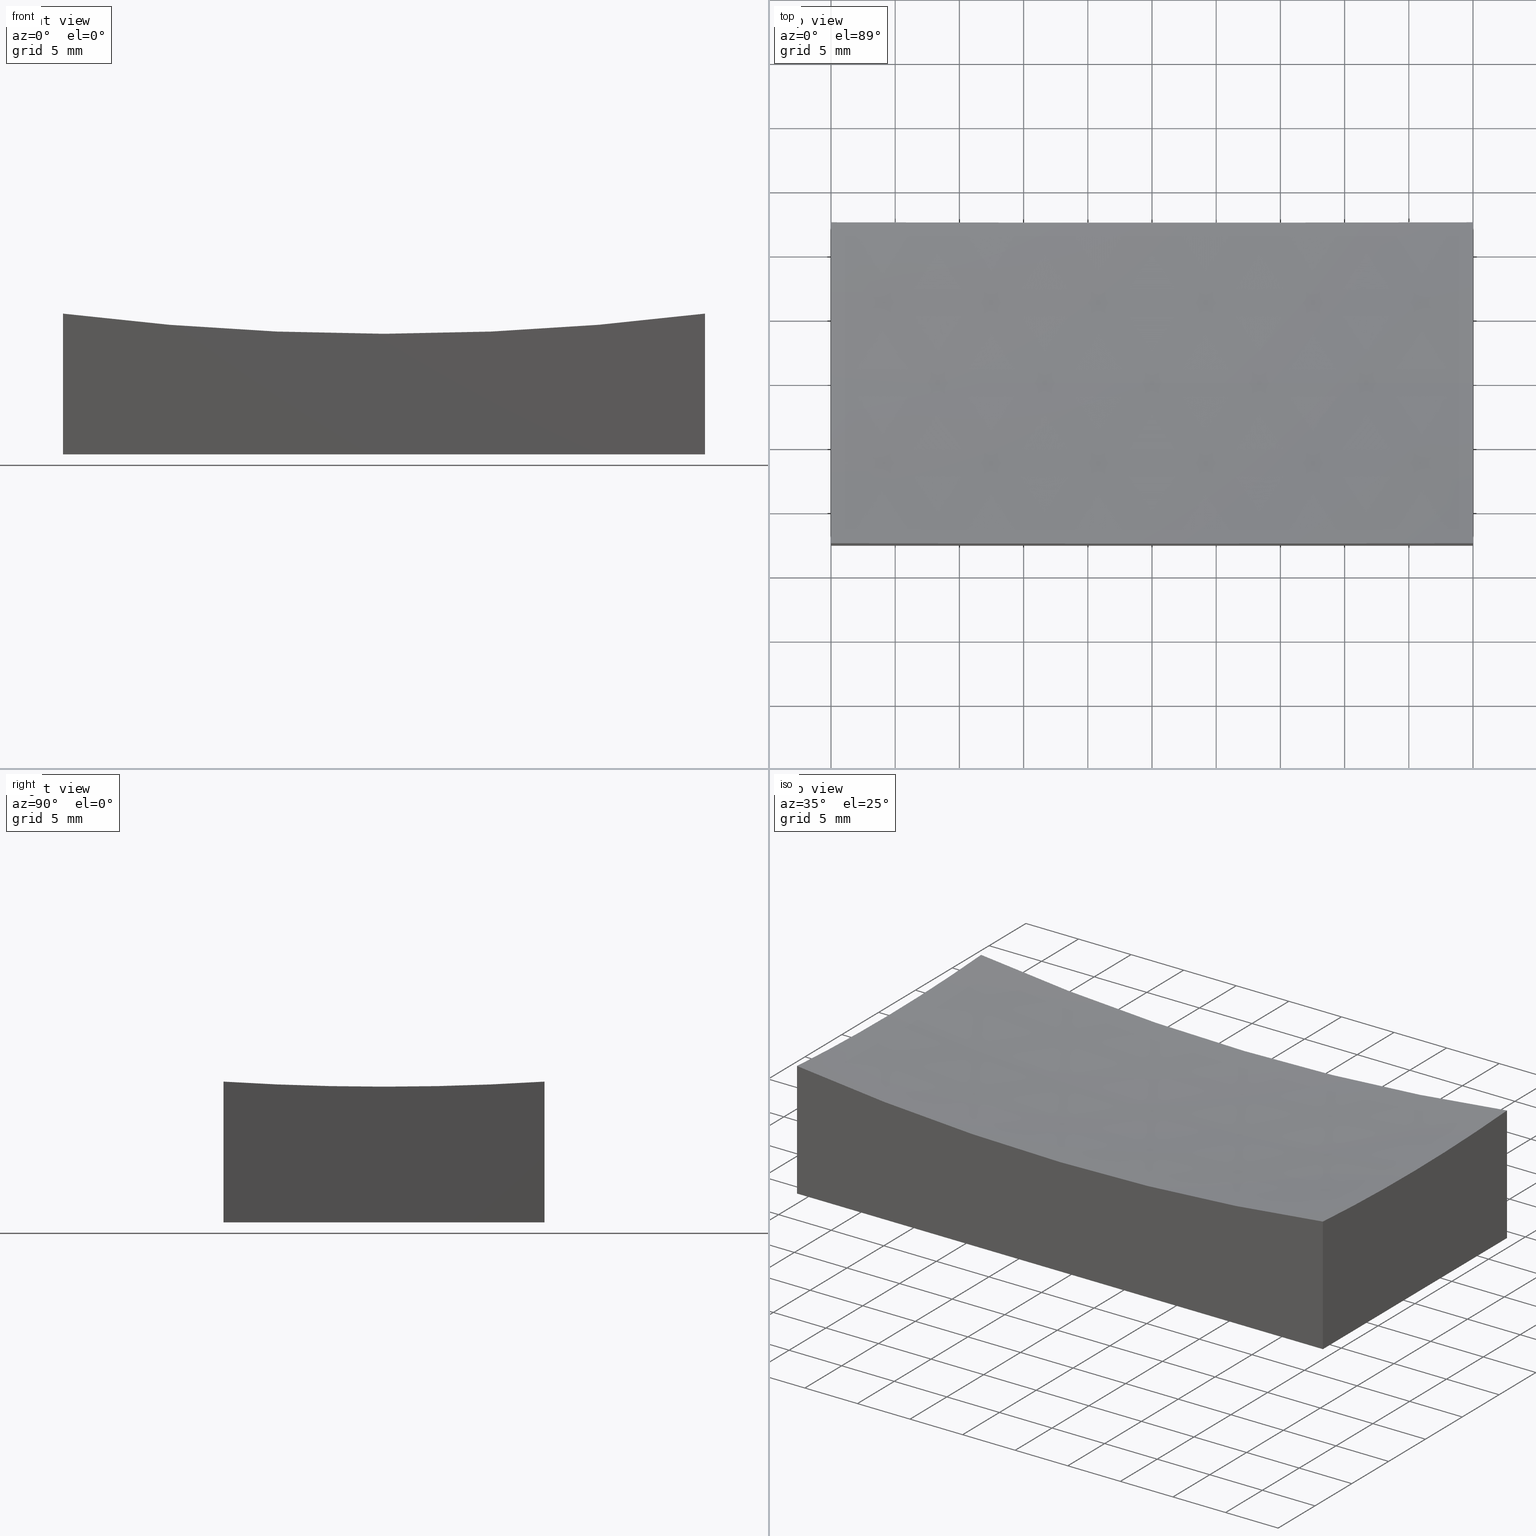
[diagram: canonical four-view strip — front | top / right | iso, engineering-drawing reading convention]
A machine part, canonical four-view strip (front | top / right | iso — engineering-drawing reading convention). The complete STEP part file that produces these views, byte-faithful:
ISO-10303-21;
HEADER;
FILE_DESCRIPTION (( 'STEP AP214' ),
    '1' );
FILE_NAME ('GM13-50x25-100.STEP',
    '2024-08-13T03:14:19',
    ( 'Windows User' ),
    ( 'P R C' ),
    'SwSTEP 2.0',
    'SolidWorks 2022',
    '' );
FILE_SCHEMA (( 'AUTOMOTIVE_DESIGN' ));
ENDSEC;

DATA;
#1 = PLANE ( 'NONE',  #218 ) ;
#2 = SPHERICAL_SURFACE ( 'NONE', #222, 200.0000000000000000 ) ;
#3 =( NAMED_UNIT ( * ) SI_UNIT ( $, .STERADIAN. ) SOLID_ANGLE_UNIT ( ) );
#4 = CIRCLE ( 'NONE', #210, 198.4313483298443259 ) ;
#5 = CARTESIAN_POINT ( 'NONE',  ( 0.000000000000000000, 0.000000000000000000, 0.000000000000000000 ) ) ;
#6 = PRESENTATION_LAYER_ASSIGNMENT (  '', '', ( #213 ) ) ;
#7 =( NAMED_UNIT ( * ) SI_UNIT ( $, .STERADIAN. ) SOLID_ANGLE_UNIT ( ) );
#8 = VERTEX_POINT ( 'NONE', #206 ) ;
#9 = ORIENTED_EDGE ( 'NONE', *, *, #72, .T. ) ;
#10 =( NAMED_UNIT ( * ) SI_UNIT ( $, .STERADIAN. ) SOLID_ANGLE_UNIT ( ) );
#11 = ORIENTED_EDGE ( 'NONE', *, *, #203, .F. ) ;
#12 =( NAMED_UNIT ( * ) PLANE_ANGLE_UNIT ( ) SI_UNIT ( $, .RADIAN. ) );
#13 = MECHANICAL_DESIGN_GEOMETRIC_PRESENTATION_REPRESENTATION (  '', ( #213 ), #54 ) ;
#14 = MANIFOLD_SOLID_BREP ( '�г�-��ת1', #151 ) ;
#15 = CARTESIAN_POINT ( 'NONE',  ( -25.00000000000000000, -3.061616997868383043E-15, 10.56865167015569362 ) ) ;
#16 = AXIS2_PLACEMENT_3D ( 'NONE', #111, #157, #32 ) ;
#17 = DIRECTION ( 'NONE',  ( 0.000000000000000000, -1.000000000000000000, -0.000000000000000000 ) ) ;
#18 = PLANE ( 'NONE',  #148 ) ;
#19 = DIRECTION ( 'NONE',  ( -1.000000000000000000, -0.000000000000000000, -0.000000000000000000 ) ) ;
#20 = ADVANCED_FACE ( 'NONE', ( #143 ), #139, .F. ) ;
#21 = UNCERTAINTY_MEASURE_WITH_UNIT (LENGTH_MEASURE( 1.000000000000000082E-05 ), #37, 'distance_accuracy_value', 'NONE');
#22 = CARTESIAN_POINT ( 'NONE',  ( -24.99999999999999645, -12.50000000000000000, 0.000000000000000000 ) ) ;
#23 = AXIS2_PLACEMENT_3D ( 'NONE', #96, #154, #195 ) ;
#24 = FACE_OUTER_BOUND ( 'NONE', #161, .T. ) ;
#25 = SHAPE_DEFINITION_REPRESENTATION ( #74, #48 ) ;
#26 = CIRCLE ( 'NONE', #180, 200.0000000000000000 ) ;
#27 = ORIENTED_EDGE ( 'NONE', *, *, #36, .F. ) ;
#28 = ADVANCED_FACE ( 'NONE', ( #103 ), #99, .F. ) ;
#29 = ORIENTED_EDGE ( 'NONE', *, *, #160, .T. ) ;
#30 = ORIENTED_EDGE ( 'NONE', *, *, #192, .T. ) ;
#31 = DIRECTION ( 'NONE',  ( 1.000000000000000000, 1.224646799147353207E-16, 0.000000000000000000 ) ) ;
#32 = DIRECTION ( 'NONE',  ( 5.329070518200749816E-15, 0.000000000000000000, 1.000000000000000000 ) ) ;
#33 = LINE ( 'NONE', #209, #80 ) ;
#34 = LINE ( 'NONE', #116, #108 ) ;
#35 = DIRECTION ( 'NONE',  ( -1.000000000000000000, -1.387778780781445676E-16, 0.000000000000000000 ) ) ;
#36 = EDGE_CURVE ( 'NONE', #49, #128, #237, .T. ) ;
#37 =( LENGTH_UNIT ( ) NAMED_UNIT ( * ) SI_UNIT ( .MILLI., .METRE. ) );
#38 = ORIENTED_EDGE ( 'NONE', *, *, #155, .T. ) ;
#39 = SURFACE_STYLE_USAGE ( .BOTH. , #58 ) ;
#40 = CARTESIAN_POINT ( 'NONE',  ( 25.00000000000000355, 12.50000000000000000, 10.96275602806423599 ) ) ;
#41 = ORIENTED_EDGE ( 'NONE', *, *, #110, .T. ) ;
#42 = PRESENTATION_LAYER_ASSIGNMENT (  '', '', ( #131 ) ) ;
#43 = ADVANCED_FACE ( 'NONE', ( #24 ), #57, .F. ) ;
#44 = ORIENTED_EDGE ( 'NONE', *, *, #136, .F. ) ;
#45 = AXIS2_PLACEMENT_3D ( 'NONE', #94, #117, #135 ) ;
#46 = ORIENTED_EDGE ( 'NONE', *, *, #129, .F. ) ;
#47 = ORIENTED_EDGE ( 'NONE', *, *, #238, .T. ) ;
#48 = ADVANCED_BREP_SHAPE_REPRESENTATION ( 'GM13-50x25-100', ( #14, #248 ), #61 ) ;
#49 = VERTEX_POINT ( 'NONE', #120 ) ;
#50 = DIRECTION ( 'NONE',  ( -0.000000000000000000, -0.000000000000000000, -1.000000000000000000 ) ) ;
#51 = DIRECTION ( 'NONE',  ( -2.797499069501050082E-16, -1.000000000000000000, 0.000000000000000000 ) ) ;
#52 = DIRECTION ( 'NONE',  ( 1.387778780781445676E-16, -1.000000000000000000, 0.000000000000000000 ) ) ;
#53 = CARTESIAN_POINT ( 'NONE',  ( 25.00000000000000000, -6.938893903907228378E-15, 209.0000000000000284 ) ) ;
#54 =( GEOMETRIC_REPRESENTATION_CONTEXT ( 3 ) GLOBAL_UNCERTAINTY_ASSIGNED_CONTEXT ( ( #21 ) ) GLOBAL_UNIT_ASSIGNED_CONTEXT ( ( #37, #144, #3 ) ) REPRESENTATION_CONTEXT ( 'NONE', 'WORKASPACE' ) );
#55 = CARTESIAN_POINT ( 'NONE',  ( 25.00000000000000355, 12.50000000000000000, 15.00000000000000000 ) ) ;
#56 = VERTEX_POINT ( 'NONE', #198 ) ;
#57 = PLANE ( 'NONE',  #79 ) ;
#58 = SURFACE_SIDE_STYLE ('',( #223 ) ) ;
#59 = EDGE_CURVE ( 'NONE', #235, #128, #101, .T. ) ;
#60 = DIRECTION ( 'NONE',  ( 0.000000000000000000, -1.000000000000000000, 0.000000000000000000 ) ) ;
#61 =( GEOMETRIC_REPRESENTATION_CONTEXT ( 3 ) GLOBAL_UNCERTAINTY_ASSIGNED_CONTEXT ( ( #216 ) ) GLOBAL_UNIT_ASSIGNED_CONTEXT ( ( #68, #12, #10 ) ) REPRESENTATION_CONTEXT ( 'NONE', 'WORKASPACE' ) );
#62 = EDGE_CURVE ( 'NONE', #8, #69, #159, .T. ) ;
#63 =( NAMED_UNIT ( * ) PLANE_ANGLE_UNIT ( ) SI_UNIT ( $, .RADIAN. ) );
#64 = EDGE_LOOP ( 'NONE', ( #245, #187, #46, #27 ) ) ;
#65 = ORIENTED_EDGE ( 'NONE', *, *, #36, .T. ) ;
#66 = AXIS2_PLACEMENT_3D ( 'NONE', #191, #230, #196 ) ;
#67 = ORIENTED_EDGE ( 'NONE', *, *, #72, .F. ) ;
#68 =( LENGTH_UNIT ( ) NAMED_UNIT ( * ) SI_UNIT ( .MILLI., .METRE. ) );
#69 = VERTEX_POINT ( 'NONE', #40 ) ;
#70 = DIRECTION ( 'NONE',  ( -0.000000000000000000, 1.000000000000000000, -0.000000000000000000 ) ) ;
#71 = DIRECTION ( 'NONE',  ( 1.224646799147353207E-16, -1.000000000000000000, -2.389495266532727716E-35 ) ) ;
#72 = EDGE_CURVE ( 'NONE', #107, #126, #26, .T. ) ;
#73 = LINE ( 'NONE', #227, #236 ) ;
#74 = PRODUCT_DEFINITION_SHAPE ( 'NONE', 'NONE',  #82 ) ;
#75 = DIRECTION ( 'NONE',  ( -0.000000000000000000, -0.000000000000000000, -1.000000000000000000 ) ) ;
#76 = CARTESIAN_POINT ( 'NONE',  ( -25.00000000000000000, 12.50000000000000000, 15.00000000000000000 ) ) ;
#77 = FACE_OUTER_BOUND ( 'NONE', #85, .T. ) ;
#78 = UNCERTAINTY_MEASURE_WITH_UNIT (LENGTH_MEASURE( 1.000000000000000082E-05 ), #182, 'distance_accuracy_value', 'NONE');
#79 = AXIS2_PLACEMENT_3D ( 'NONE', #83, #219, #142 ) ;
#80 = VECTOR ( 'NONE', #252, 1000.000000000000000 ) ;
#81 = CARTESIAN_POINT ( 'NONE',  ( 24.99999999999999645, -12.50000000000000000, 15.00000000000000000 ) ) ;
#82 = PRODUCT_DEFINITION ( 'δ֪', '', #158, #233 ) ;
#83 = CARTESIAN_POINT ( 'NONE',  ( -24.99999999999999645, -12.50000000000000000, 15.00000000000000000 ) ) ;
#84 = DIRECTION ( 'NONE',  ( 1.000000000000000000, 0.000000000000000000, 0.000000000000000000 ) ) ;
#85 = EDGE_LOOP ( 'NONE', ( #201, #9, #186, #221, #47 ) ) ;
#86 = VERTEX_POINT ( 'NONE', #133 ) ;
#87 = CIRCLE ( 'NONE', #121, 199.6089927833914146 ) ;
#88 = ORIENTED_EDGE ( 'NONE', *, *, #59, .T. ) ;
#89 = ORIENTED_EDGE ( 'NONE', *, *, #199, .F. ) ;
#90 = SURFACE_STYLE_USAGE ( .BOTH. , #190 ) ;
#91 = MECHANICAL_DESIGN_GEOMETRIC_PRESENTATION_REPRESENTATION (  '', ( #131 ), #170 ) ;
#92 = VECTOR ( 'NONE', #179, 1000.000000000000000 ) ;
#93 = CIRCLE ( 'NONE', #45, 200.0000000000000000 ) ;
#94 = CARTESIAN_POINT ( 'NONE',  ( 0.000000000000000000, 0.000000000000000000, 209.0000000000000284 ) ) ;
#95 = DIRECTION ( 'NONE',  ( -1.398749534750525041E-16, 1.000000000000000000, 0.000000000000000000 ) ) ;
#96 = CARTESIAN_POINT ( 'NONE',  ( -25.00000000000000000, -3.469446951953614189E-15, 209.0000000000000284 ) ) ;
#97 = DIRECTION ( 'NONE',  ( -2.775557561562891351E-16, -1.000000000000000000, 0.000000000000000000 ) ) ;
#98 = DIRECTION ( 'NONE',  ( 2.775557561562891351E-16, 1.000000000000000000, -0.000000000000000000 ) ) ;
#99 = PLANE ( 'NONE',  #124 ) ;
#100 = ADVANCED_FACE ( 'NONE', ( #172 ), #194, .F. ) ;
#101 = LINE ( 'NONE', #81, #92 ) ;
#102 = VECTOR ( 'NONE', #75, 1000.000000000000000 ) ;
#103 = FACE_OUTER_BOUND ( 'NONE', #64, .T. ) ;
#104 = CARTESIAN_POINT ( 'NONE',  ( 0.000000000000000000, 0.000000000000000000, 0.000000000000000000 ) ) ;
#105 = CIRCLE ( 'NONE', #141, 198.4313483298443259 ) ;
#106 = ORIENTED_EDGE ( 'NONE', *, *, #155, .F. ) ;
#107 = VERTEX_POINT ( 'NONE', #15 ) ;
#108 = VECTOR ( 'NONE', #19, 1000.000000000000000 ) ;
#109 = ORIENTED_EDGE ( 'NONE', *, *, #59, .F. ) ;
#110 = EDGE_CURVE ( 'NONE', #8, #126, #93, .T. ) ;
#111 = CARTESIAN_POINT ( 'NONE',  ( 0.000000000000000000, -12.49999999999999645, 209.0000000000000284 ) ) ;
#112 = VECTOR ( 'NONE', #50, 1000.000000000000000 ) ;
#113 = CARTESIAN_POINT ( 'NONE',  ( -25.00000000000000000, -3.469446951953614189E-15, 209.0000000000000284 ) ) ;
#114 = CARTESIAN_POINT ( 'NONE',  ( 0.000000000000000000, 0.000000000000000000, 209.0000000000000284 ) ) ;
#115 = COLOUR_RGB ( '',1.000000000000000000, 1.000000000000000000, 1.000000000000000000 ) ;
#116 = CARTESIAN_POINT ( 'NONE',  ( -25.00000000000000000, 12.50000000000000000, 0.000000000000000000 ) ) ;
#117 = DIRECTION ( 'NONE',  ( 0.000000000000000000, 1.000000000000000000, -0.000000000000000000 ) ) ;
#118 = EDGE_CURVE ( 'NONE', #123, #49, #229, .T. ) ;
#119 = PRODUCT ( 'GM13-50x25-100', 'GM13-50x25-100', '', ( #220 ) ) ;
#120 = CARTESIAN_POINT ( 'NONE',  ( -24.99999999999999645, -12.50000000000000000, 0.000000000000000000 ) ) ;
#121 = AXIS2_PLACEMENT_3D ( 'NONE', #188, #70, #205 ) ;
#122 = CARTESIAN_POINT ( 'NONE',  ( 0.000000000000000000, 0.000000000000000000, 209.0000000000000284 ) ) ;
#123 = VERTEX_POINT ( 'NONE', #174 ) ;
#124 = AXIS2_PLACEMENT_3D ( 'NONE', #5, #178, #162 ) ;
#125 = DIRECTION ( 'NONE',  ( 0.000000000000000000, 0.000000000000000000, 1.000000000000000000 ) ) ;
#126 = VERTEX_POINT ( 'NONE', #251 ) ;
#127 = CIRCLE ( 'NONE', #16, 199.6089927833914430 ) ;
#128 = VERTEX_POINT ( 'NONE', #153 ) ;
#129 = EDGE_CURVE ( 'NONE', #128, #56, #73, .T. ) ;
#130 = EDGE_LOOP ( 'NONE', ( #67, #30, #38, #247, #41 ) ) ;
#131 = STYLED_ITEM ( 'NONE', ( #249 ), #48 ) ;
#132 = ORIENTED_EDGE ( 'NONE', *, *, #238, .F. ) ;
#133 = CARTESIAN_POINT ( 'NONE',  ( -24.99999999999998934, -12.49999999999999645, 10.96275602806423599 ) ) ;
#134 = DIRECTION ( 'NONE',  ( -1.000000000000000000, 2.775557561562891351E-16, 0.000000000000000000 ) ) ;
#135 = DIRECTION ( 'NONE',  ( 0.000000000000000000, 0.000000000000000000, 1.000000000000000000 ) ) ;
#136 = EDGE_CURVE ( 'NONE', #86, #49, #33, .T. ) ;
#137 = DIRECTION ( 'NONE',  ( -1.387778780781445676E-16, 1.000000000000000000, 0.000000000000000000 ) ) ;
#138 = CARTESIAN_POINT ( 'NONE',  ( -25.00000000000000000, 12.50000000000000000, 15.00000000000000000 ) ) ;
#139 = PLANE ( 'NONE',  #232 ) ;
#140 = ADVANCED_FACE ( 'NONE', ( #77 ), #2, .F. ) ;
#141 = AXIS2_PLACEMENT_3D ( 'NONE', #113, #35, #95 ) ;
#142 = DIRECTION ( 'NONE',  ( 0.000000000000000000, -0.000000000000000000, 1.000000000000000000 ) ) ;
#143 = FACE_OUTER_BOUND ( 'NONE', #184, .T. ) ;
#144 =( NAMED_UNIT ( * ) PLANE_ANGLE_UNIT ( ) SI_UNIT ( $, .RADIAN. ) );
#145 = APPLICATION_CONTEXT ( 'automotive_design' ) ;
#146 = ORIENTED_EDGE ( 'NONE', *, *, #118, .T. ) ;
#147 = ORIENTED_EDGE ( 'NONE', *, *, #160, .F. ) ;
#148 = AXIS2_PLACEMENT_3D ( 'NONE', #55, #134, #97 ) ;
#149 = EDGE_LOOP ( 'NONE', ( #11, #169, #146, #44, #240 ) ) ;
#150 = FILL_AREA_STYLE ('',( #246 ) ) ;
#151 = CLOSED_SHELL ( 'NONE', ( #140, #208, #43, #185, #20, #28, #100 ) ) ;
#152 = ORIENTED_EDGE ( 'NONE', *, *, #62, .F. ) ;
#153 = CARTESIAN_POINT ( 'NONE',  ( 24.99999999999999645, -12.50000000000000000, 0.000000000000000000 ) ) ;
#154 = DIRECTION ( 'NONE',  ( -1.000000000000000000, -1.387778780781445676E-16, 0.000000000000000000 ) ) ;
#155 = EDGE_CURVE ( 'NONE', #86, #235, #127, .T. ) ;
#156 = DIRECTION ( 'NONE',  ( 1.000000000000000000, 1.387778780781445676E-16, -0.000000000000000000 ) ) ;
#157 = DIRECTION ( 'NONE',  ( -0.000000000000000000, -1.000000000000000000, -0.000000000000000000 ) ) ;
#158 = PRODUCT_DEFINITION_FORMATION_WITH_SPECIFIED_SOURCE ( '�κ�', '', #119, .NOT_KNOWN. ) ;
#159 = CIRCLE ( 'NONE', #163, 198.4313483298443259 ) ;
#160 = EDGE_CURVE ( 'NONE', #69, #56, #228, .T. ) ;
#161 = EDGE_LOOP ( 'NONE', ( #106, #166, #65, #109 ) ) ;
#162 = DIRECTION ( 'NONE',  ( 1.000000000000000000, 0.000000000000000000, 0.000000000000000000 ) ) ;
#163 = AXIS2_PLACEMENT_3D ( 'NONE', #200, #164, #239 ) ;
#164 = DIRECTION ( 'NONE',  ( 1.000000000000000000, -2.775557561562891351E-16, -0.000000000000000000 ) ) ;
#165 = ORIENTED_EDGE ( 'NONE', *, *, #226, .T. ) ;
#166 = ORIENTED_EDGE ( 'NONE', *, *, #136, .T. ) ;
#167 = EDGE_CURVE ( 'NONE', #235, #8, #4, .T. ) ;
#168 = EDGE_LOOP ( 'NONE', ( #242, #88, #225, #147, #152 ) ) ;
#169 = ORIENTED_EDGE ( 'NONE', *, *, #199, .T. ) ;
#170 =( GEOMETRIC_REPRESENTATION_CONTEXT ( 3 ) GLOBAL_UNCERTAINTY_ASSIGNED_CONTEXT ( ( #78 ) ) GLOBAL_UNIT_ASSIGNED_CONTEXT ( ( #182, #63, #7 ) ) REPRESENTATION_CONTEXT ( 'NONE', 'WORKASPACE' ) );
#171 = SURFACE_STYLE_FILL_AREA ( #150 ) ;
#172 = FACE_OUTER_BOUND ( 'NONE', #130, .T. ) ;
#173 = PRODUCT_RELATED_PRODUCT_CATEGORY ( 'part', '', ( #119 ) ) ;
#174 = CARTESIAN_POINT ( 'NONE',  ( -25.00000000000000000, 12.50000000000000000, 0.000000000000000000 ) ) ;
#175 = FACE_OUTER_BOUND ( 'NONE', #149, .T. ) ;
#176 = CARTESIAN_POINT ( 'NONE',  ( 24.99999999999999645, -12.50000000000000000, 10.96275602806423599 ) ) ;
#177 = PRESENTATION_STYLE_ASSIGNMENT (( #39 ) ) ;
#178 = DIRECTION ( 'NONE',  ( -0.000000000000000000, 0.000000000000000000, 1.000000000000000000 ) ) ;
#179 = DIRECTION ( 'NONE',  ( -0.000000000000000000, -0.000000000000000000, -1.000000000000000000 ) ) ;
#180 = AXIS2_PLACEMENT_3D ( 'NONE', #122, #71, #31 ) ;
#181 = DIRECTION ( 'NONE',  ( 1.000000000000000000, 0.000000000000000000, 0.000000000000000000 ) ) ;
#182 =( LENGTH_UNIT ( ) NAMED_UNIT ( * ) SI_UNIT ( .MILLI., .METRE. ) );
#183 = APPLICATION_PROTOCOL_DEFINITION ( 'draft international standard', 'automotive_design', 1998, #214 ) ;
#184 = EDGE_LOOP ( 'NONE', ( #132, #29, #165, #89 ) ) ;
#185 = ADVANCED_FACE ( 'NONE', ( #215 ), #18, .F. ) ;
#186 = ORIENTED_EDGE ( 'NONE', *, *, #110, .F. ) ;
#187 = ORIENTED_EDGE ( 'NONE', *, *, #226, .F. ) ;
#188 = CARTESIAN_POINT ( 'NONE',  ( 0.000000000000000000, 12.50000000000000000, 209.0000000000000284 ) ) ;
#189 = FILL_AREA_STYLE_COLOUR ( '', #115 ) ;
#190 = SURFACE_SIDE_STYLE ('',( #171 ) ) ;
#191 = CARTESIAN_POINT ( 'NONE',  ( 0.000000000000000000, 0.000000000000000000, 209.0000000000000284 ) ) ;
#192 = EDGE_CURVE ( 'NONE', #107, #86, #105, .T. ) ;
#193 = VECTOR ( 'NONE', #52, 1000.000000000000000 ) ;
#194 = SPHERICAL_SURFACE ( 'NONE', #66, 200.0000000000000000 ) ;
#195 = DIRECTION ( 'NONE',  ( -1.398749534750525041E-16, 1.000000000000000000, 0.000000000000000000 ) ) ;
#196 = DIRECTION ( 'NONE',  ( 1.000000000000000000, 0.000000000000000000, 0.000000000000000000 ) ) ;
#197 = LINE ( 'NONE', #138, #102 ) ;
#198 = CARTESIAN_POINT ( 'NONE',  ( 25.00000000000000355, 12.50000000000000000, 0.000000000000000000 ) ) ;
#199 = EDGE_CURVE ( 'NONE', #224, #123, #197, .T. ) ;
#200 = CARTESIAN_POINT ( 'NONE',  ( 25.00000000000000000, -6.938893903907228378E-15, 209.0000000000000284 ) ) ;
#201 = ORIENTED_EDGE ( 'NONE', *, *, #203, .T. ) ;
#202 = VECTOR ( 'NONE', #181, 1000.000000000000000 ) ;
#203 = EDGE_CURVE ( 'NONE', #224, #107, #244, .T. ) ;
#204 = APPLICATION_PROTOCOL_DEFINITION ( 'draft international standard', 'automotive_design', 1998, #145 ) ;
#205 = DIRECTION ( 'NONE',  ( 0.000000000000000000, 0.000000000000000000, -1.000000000000000000 ) ) ;
#206 = CARTESIAN_POINT ( 'NONE',  ( 25.00000000000000000, 0.000000000000000000, 10.56865167015569362 ) ) ;
#207 = DIRECTION ( 'NONE',  ( 1.000000000000000000, -2.775557561562891351E-16, -0.000000000000000000 ) ) ;
#208 = ADVANCED_FACE ( 'NONE', ( #175 ), #1, .F. ) ;
#209 = CARTESIAN_POINT ( 'NONE',  ( -24.99999999999999645, -12.50000000000000000, 15.00000000000000000 ) ) ;
#210 = AXIS2_PLACEMENT_3D ( 'NONE', #53, #207, #51 ) ;
#211 = CARTESIAN_POINT ( 'NONE',  ( -25.00000000000000000, 12.50000000000000000, 0.000000000000000000 ) ) ;
#212 = CARTESIAN_POINT ( 'NONE',  ( -25.00000000000000000, 12.50000000000000000, 10.96275602806423599 ) ) ;
#213 = STYLED_ITEM ( 'NONE', ( #177 ), #14 ) ;
#214 = APPLICATION_CONTEXT ( 'automotive_design' ) ;
#215 = FACE_OUTER_BOUND ( 'NONE', #168, .T. ) ;
#216 = UNCERTAINTY_MEASURE_WITH_UNIT (LENGTH_MEASURE( 1.000000000000000082E-05 ), #68, 'distance_accuracy_value', 'NONE');
#217 = CARTESIAN_POINT ( 'NONE',  ( -25.00000000000000000, 12.50000000000000000, 15.00000000000000000 ) ) ;
#218 = AXIS2_PLACEMENT_3D ( 'NONE', #76, #156, #137 ) ;
#219 = DIRECTION ( 'NONE',  ( 0.000000000000000000, 1.000000000000000000, 0.000000000000000000 ) ) ;
#220 = PRODUCT_CONTEXT ( 'NONE', #214, 'mechanical' ) ;
#221 = ORIENTED_EDGE ( 'NONE', *, *, #62, .T. ) ;
#222 = AXIS2_PLACEMENT_3D ( 'NONE', #114, #17, #231 ) ;
#223 = SURFACE_STYLE_FILL_AREA ( #243 ) ;
#224 = VERTEX_POINT ( 'NONE', #212 ) ;
#225 = ORIENTED_EDGE ( 'NONE', *, *, #129, .T. ) ;
#226 = EDGE_CURVE ( 'NONE', #56, #123, #34, .T. ) ;
#227 = CARTESIAN_POINT ( 'NONE',  ( 25.00000000000000355, 12.50000000000000000, 0.000000000000000000 ) ) ;
#228 = LINE ( 'NONE', #250, #112 ) ;
#229 = LINE ( 'NONE', #211, #193 ) ;
#230 = DIRECTION ( 'NONE',  ( 0.000000000000000000, -1.000000000000000000, -0.000000000000000000 ) ) ;
#231 = DIRECTION ( 'NONE',  ( 1.000000000000000000, 0.000000000000000000, 0.000000000000000000 ) ) ;
#232 = AXIS2_PLACEMENT_3D ( 'NONE', #217, #60, #234 ) ;
#233 = PRODUCT_DEFINITION_CONTEXT ( 'detailed design', #145, 'design' ) ;
#234 = DIRECTION ( 'NONE',  ( 0.000000000000000000, -0.000000000000000000, -1.000000000000000000 ) ) ;
#235 = VERTEX_POINT ( 'NONE', #176 ) ;
#236 = VECTOR ( 'NONE', #98, 1000.000000000000000 ) ;
#237 = LINE ( 'NONE', #22, #202 ) ;
#238 = EDGE_CURVE ( 'NONE', #69, #224, #87, .T. ) ;
#239 = DIRECTION ( 'NONE',  ( -2.797499069501050082E-16, -1.000000000000000000, 0.000000000000000000 ) ) ;
#240 = ORIENTED_EDGE ( 'NONE', *, *, #192, .F. ) ;
#241 = COLOUR_RGB ( '',1.000000000000000000, 1.000000000000000000, 1.000000000000000000 ) ;
#242 = ORIENTED_EDGE ( 'NONE', *, *, #167, .F. ) ;
#243 = FILL_AREA_STYLE ('',( #189 ) ) ;
#244 = CIRCLE ( 'NONE', #23, 198.4313483298443259 ) ;
#245 = ORIENTED_EDGE ( 'NONE', *, *, #118, .F. ) ;
#246 = FILL_AREA_STYLE_COLOUR ( '', #241 ) ;
#247 = ORIENTED_EDGE ( 'NONE', *, *, #167, .T. ) ;
#248 = AXIS2_PLACEMENT_3D ( 'NONE', #104, #125, #84 ) ;
#249 = PRESENTATION_STYLE_ASSIGNMENT (( #90 ) ) ;
#250 = CARTESIAN_POINT ( 'NONE',  ( 25.00000000000000355, 12.50000000000000000, 15.00000000000000000 ) ) ;
#251 = CARTESIAN_POINT ( 'NONE',  ( 1.220744457234245953E-14, 0.000000000000000000, 9.000000000000007105 ) ) ;
#252 = DIRECTION ( 'NONE',  ( -0.000000000000000000, -0.000000000000000000, -1.000000000000000000 ) ) ;
ENDSEC;
END-ISO-10303-21;
